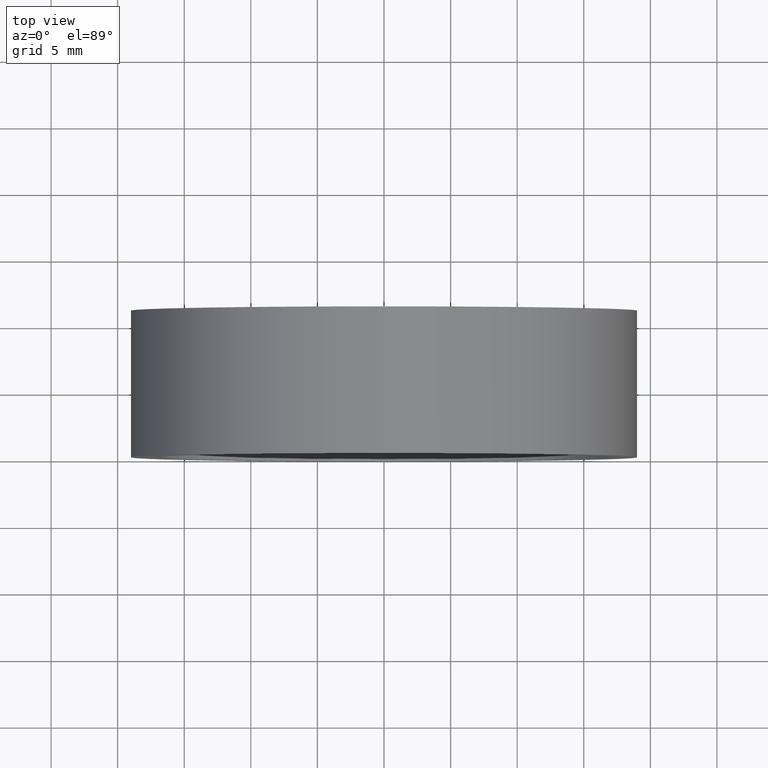
[diagram: clean part render]
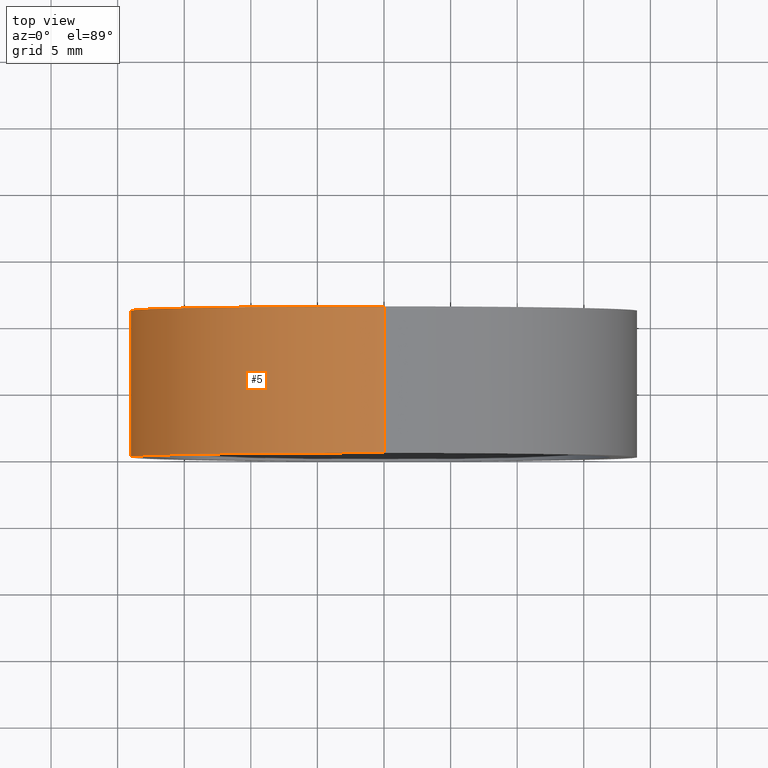
[diagram: same view with one face highlighted and labeled with its STEP entity id]
A machine part, top view. The second image highlights one B-rep face of the part: STEP entity #5.
In plain terms, the highlighted cylindrical surface (partial cylindrical patch) has radius 19.05 mm, axis along (-0, 1, -0).
Its self-contained STEP definition (entity closure, byte-faithful):
#5 = ADVANCED_FACE ( 'NONE', ( #52 ), #211, .T. ) ;
#30 = AXIS2_PLACEMENT_3D ( 'NONE', #312, #228, #239 ) ;
#35 = ORIENTED_EDGE ( 'NONE', *, *, #406, .T. ) ;
#52 = FACE_OUTER_BOUND ( 'NONE', #413, .T. ) ;
#62 = ORIENTED_EDGE ( 'NONE', *, *, #379, .F. ) ;
#64 = DIRECTION ( 'NONE',  ( -0.0000000000000000000, 1.000000000000000000, -0.0000000000000000000 ) ) ;
#76 = CARTESIAN_POINT ( 'NONE',  ( 0.0000000000000000000, 10.99999999999999600, 19.05000000000000400 ) ) ;
#95 = CIRCLE ( 'NONE', #280, 19.05000000000000400 ) ;
#100 = DIRECTION ( 'NONE',  ( -0.0000000000000000000, 1.000000000000000000, -0.0000000000000000000 ) ) ;
#113 = AXIS2_PLACEMENT_3D ( 'NONE', #193, #64, #116 ) ;
#116 = DIRECTION ( 'NONE',  ( 0.0000000000000000000, 0.0000000000000000000, 1.000000000000000000 ) ) ;
#151 = VERTEX_POINT ( 'NONE', #76 ) ;
#172 = CARTESIAN_POINT ( 'NONE',  ( 0.0000000000000000000, 60.02082041425541100, 19.05000000000000400 ) ) ;
#176 = CIRCLE ( 'NONE', #113, 19.05000000000000400 ) ;
#179 = CARTESIAN_POINT ( 'NONE',  ( 2.332952152375708400E-015, 60.02082041425541100, -19.05000000000000400 ) ) ;
#188 = DIRECTION ( 'NONE',  ( -0.0000000000000000000, 1.000000000000000000, -0.0000000000000000000 ) ) ;
#189 = CARTESIAN_POINT ( 'NONE',  ( 0.0000000000000000000, 0.0000000000000000000, 19.05000000000000400 ) ) ;
#193 = CARTESIAN_POINT ( 'NONE',  ( 0.0000000000000000000, 0.0000000000000000000, 0.0000000000000000000 ) ) ;
#195 = DIRECTION ( 'NONE',  ( -0.0000000000000000000, 1.000000000000000000, -0.0000000000000000000 ) ) ;
#211 = CYLINDRICAL_SURFACE ( 'NONE', #30, 19.05000000000000400 ) ;
#218 = CARTESIAN_POINT ( 'NONE',  ( 2.332952152375708400E-015, 10.99999999999999600, -19.05000000000000400 ) ) ;
#228 = DIRECTION ( 'NONE',  ( -0.0000000000000000000, 1.000000000000000000, -0.0000000000000000000 ) ) ;
#235 = ORIENTED_EDGE ( 'NONE', *, *, #365, .T. ) ;
#237 = EDGE_CURVE ( 'NONE', #387, #151, #95, .T. ) ;
#239 = DIRECTION ( 'NONE',  ( 0.0000000000000000000, 0.0000000000000000000, 1.000000000000000000 ) ) ;
#249 = ORIENTED_EDGE ( 'NONE', *, *, #237, .F. ) ;
#280 = AXIS2_PLACEMENT_3D ( 'NONE', #388, #100, #377 ) ;
#284 = LINE ( 'NONE', #172, #375 ) ;
#288 = CARTESIAN_POINT ( 'NONE',  ( 2.332952152375708400E-015, 0.0000000000000000000, -19.05000000000000400 ) ) ;
#312 = CARTESIAN_POINT ( 'NONE',  ( 0.0000000000000000000, 60.02082041425541100, 0.0000000000000000000 ) ) ;
#344 = VERTEX_POINT ( 'NONE', #288 ) ;
#365 = EDGE_CURVE ( 'NONE', #344, #374, #176, .T. ) ;
#374 = VERTEX_POINT ( 'NONE', #189 ) ;
#375 = VECTOR ( 'NONE', #195, 1000.000000000000000 ) ;
#377 = DIRECTION ( 'NONE',  ( 0.0000000000000000000, 0.0000000000000000000, 1.000000000000000000 ) ) ;
#379 = EDGE_CURVE ( 'NONE', #344, #387, #393, .T. ) ;
#387 = VERTEX_POINT ( 'NONE', #218 ) ;
#388 = CARTESIAN_POINT ( 'NONE',  ( 0.0000000000000000000, 10.99999999999999600, 0.0000000000000000000 ) ) ;
#393 = LINE ( 'NONE', #179, #417 ) ;
#406 = EDGE_CURVE ( 'NONE', #374, #151, #284, .T. ) ;
#413 = EDGE_LOOP ( 'NONE', ( #62, #235, #35, #249 ) ) ;
#417 = VECTOR ( 'NONE', #188, 1000.000000000000000 ) ;